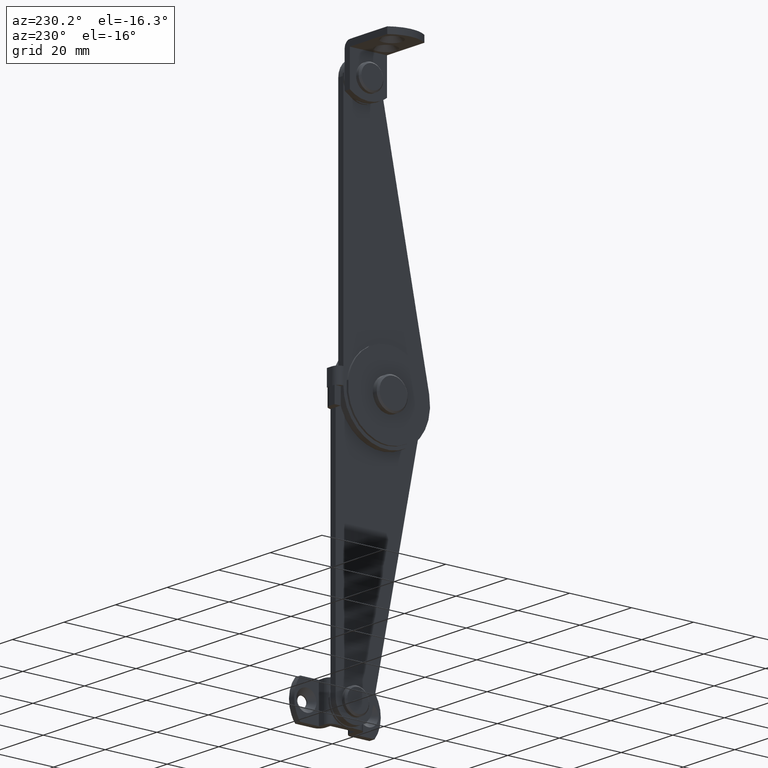
[diagram: clean part render]
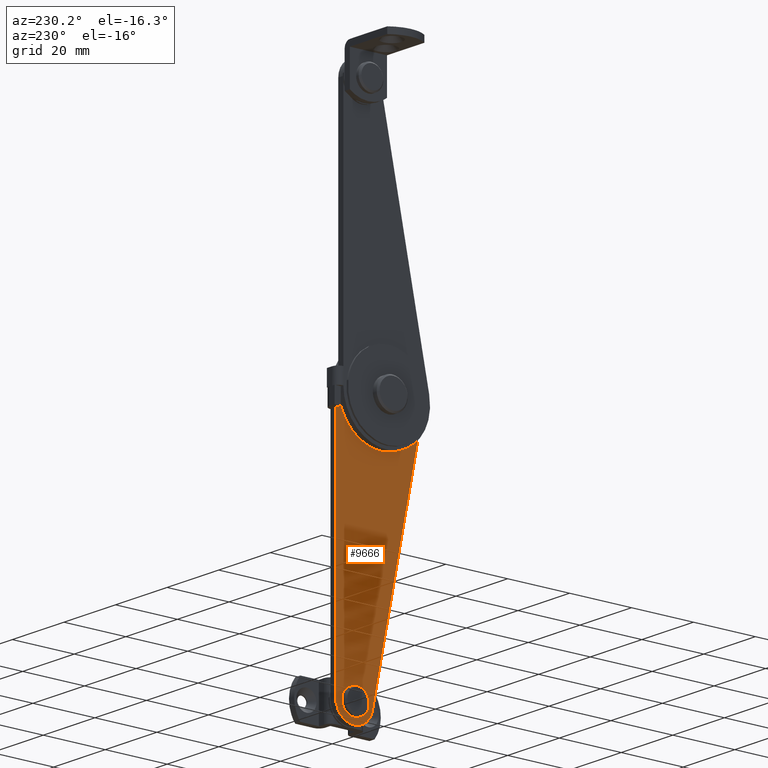
[diagram: same view with one face highlighted and labeled with its STEP entity id]
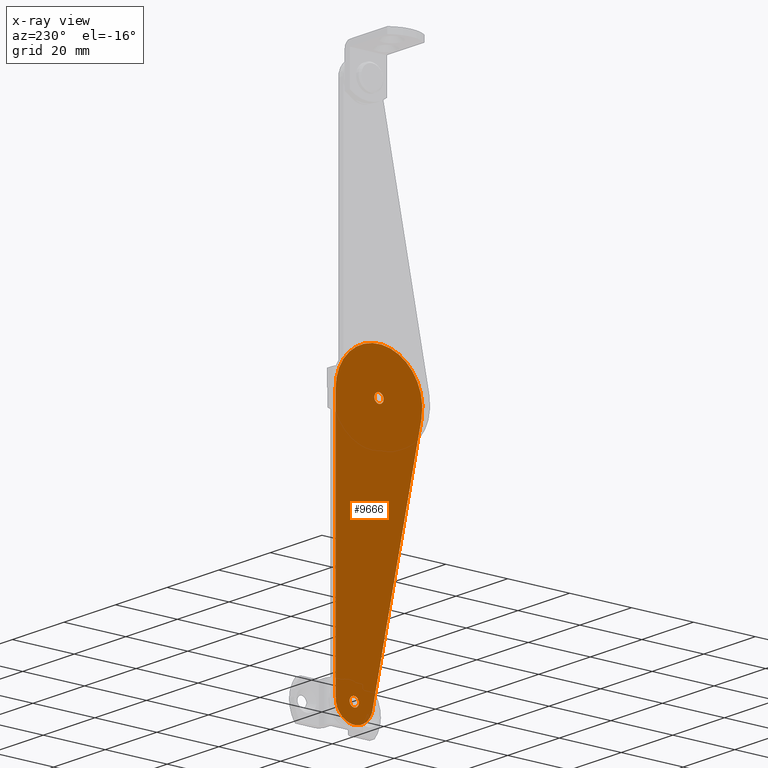
[diagram: x-ray of the same camera — body ghosted, the highlighted face saturated]
A machine part, auxiliary view. The second image highlights one B-rep face of the part: STEP entity #9666.
The next image is the same camera in x-ray: the body ghosted, the highlighted face saturated — about 0% of this face is hidden behind the body in this view.
In plain terms, the highlighted face is a freeform B-spline surface patch.
Its self-contained STEP definition (entity closure, byte-faithful):
#9092=CARTESIAN_POINT('',(-8.500000000000000,-1.495376000598306,-80.117688643609370));
#9093=VERTEX_POINT('',#9092);
#9099=CARTESIAN_POINT('',(-8.500000000000000,1.183291E-029,-78.500000000000000));
#9100=VERTEX_POINT('',#9099);
#9101=CARTESIAN_POINT('',(-8.500000000000000,-1.495376000598306,-80.117688643609370));
#9102=CARTESIAN_POINT('',(-8.500000000000000,-1.500000000000000,-80.058935160529217));
#9103=CARTESIAN_POINT('',(-8.500000000000000,-1.500000000000000,-80.0));
#9104=CARTESIAN_POINT('',(-8.500000000000002,-1.500000000000000,-78.500000000000000));
#9105=CARTESIAN_POINT('',(-8.500000000000000,1.183291E-029,-78.500000000000000));
#9113=(BOUNDED_CURVE()B_SPLINE_CURVE(2,(#9101,#9102,#9103,#9104,#9105),.UNSPECIFIED.,.F.,.U.)B_SPLINE_CURVE_WITH_KNOTS((3,2,3),(0.736331300628729,0.750000000000000,1.0),.UNSPECIFIED.)CURVE()GEOMETRIC_REPRESENTATION_ITEM()RATIONAL_B_SPLINE_CURVE((0.969723356163388,0.983986122576620,1.0,0.707106781186548,1.0))REPRESENTATION_ITEM(''));
#9114=EDGE_CURVE('',#9093,#9100,#9113,.T.);
#9116=CARTESIAN_POINT('',(-8.500000000000000,1.495376000598306,-79.882311356390616));
#9117=VERTEX_POINT('',#9116);
#9118=CARTESIAN_POINT('',(-8.500000000000000,1.183291E-029,-78.500000000000000));
#9119=CARTESIAN_POINT('',(-8.500000000000002,1.386585737454552,-78.500000000000014));
#9120=CARTESIAN_POINT('',(-8.500000000000000,1.495376000598306,-79.882311356390616));
#9128=(BOUNDED_CURVE()B_SPLINE_CURVE(2,(#9118,#9119,#9120),.UNSPECIFIED.,.F.,.U.)B_SPLINE_CURVE_WITH_KNOTS((3,3),(0.0,0.236331300628730),.UNSPECIFIED.)CURVE()GEOMETRIC_REPRESENTATION_ITEM()RATIONAL_B_SPLINE_CURVE((1.0,0.723120658609927,0.969723356163390))REPRESENTATION_ITEM(''));
#9129=EDGE_CURVE('',#9100,#9117,#9128,.T.);
#9175=CARTESIAN_POINT('',(-8.500000000000000,1.183291E-029,-81.500000000000000));
#9176=VERTEX_POINT('',#9175);
#9177=CARTESIAN_POINT('',(-8.500000000000000,1.495376000598305,-79.882311356390616));
#9178=CARTESIAN_POINT('',(-8.499999999999998,1.500000000000000,-79.941064839470798));
#9179=CARTESIAN_POINT('',(-8.500000000000000,1.500000000000000,-80.0));
#9180=CARTESIAN_POINT('',(-8.500000000000002,1.500000000000000,-81.500000000000000));
#9181=CARTESIAN_POINT('',(-8.500000000000000,1.183291E-029,-81.500000000000000));
#9189=(BOUNDED_CURVE()B_SPLINE_CURVE(2,(#9177,#9178,#9179,#9180,#9181),.UNSPECIFIED.,.F.,.U.)B_SPLINE_CURVE_WITH_KNOTS((3,2,3),(0.236331300628730,0.250000000000000,0.500000000000000),.UNSPECIFIED.)CURVE()GEOMETRIC_REPRESENTATION_ITEM()RATIONAL_B_SPLINE_CURVE((0.969723356163390,0.983986122576621,1.0,0.707106781186548,1.0))REPRESENTATION_ITEM(''));
#9190=EDGE_CURVE('',#9117,#9176,#9189,.T.);
#9192=CARTESIAN_POINT('',(-8.500000000000000,1.183291E-029,-81.500000000000000));
#9193=CARTESIAN_POINT('',(-8.500000000000000,-1.386585737454552,-81.500000000000000));
#9194=CARTESIAN_POINT('',(-8.500000000000000,-1.495376000598306,-80.117688643609370));
#9202=(BOUNDED_CURVE()B_SPLINE_CURVE(2,(#9192,#9193,#9194),.UNSPECIFIED.,.F.,.U.)B_SPLINE_CURVE_WITH_KNOTS((3,3),(0.500000000000000,0.736331300628729),.UNSPECIFIED.)CURVE()GEOMETRIC_REPRESENTATION_ITEM()RATIONAL_B_SPLINE_CURVE((1.0,0.723120658609927,0.969723356163389))REPRESENTATION_ITEM(''));
#9203=EDGE_CURVE('',#9176,#9093,#9202,.T.);
#9274=CARTESIAN_POINT('',(-8.500000000000000,-9.495376000598306,-0.117688643609387));
#9275=VERTEX_POINT('',#9274);
#9281=CARTESIAN_POINT('',(-8.500000000000000,-8.0,1.500000000000000));
#9282=VERTEX_POINT('',#9281);
#9283=CARTESIAN_POINT('',(-8.500000000000000,-9.495376000598307,-0.117688643609387));
#9284=CARTESIAN_POINT('',(-8.500000000000000,-9.500000000000000,-0.058935160529206));
#9285=CARTESIAN_POINT('',(-8.500000000000000,-9.500000000000000,4.898425E-016));
#9286=CARTESIAN_POINT('',(-8.500000000000002,-9.500000000000000,1.500000000000001));
#9287=CARTESIAN_POINT('',(-8.500000000000000,-8.0,1.500000000000000));
#9295=(BOUNDED_CURVE()B_SPLINE_CURVE(2,(#9283,#9284,#9285,#9286,#9287),.UNSPECIFIED.,.F.,.U.)B_SPLINE_CURVE_WITH_KNOTS((3,2,3),(0.736331300628727,0.750000000000000,1.0),.UNSPECIFIED.)CURVE()GEOMETRIC_REPRESENTATION_ITEM()RATIONAL_B_SPLINE_CURVE((0.969723356163385,0.983986122576618,1.0,0.707106781186548,1.0))REPRESENTATION_ITEM(''));
#9296=EDGE_CURVE('',#9275,#9282,#9295,.T.);
#9298=CARTESIAN_POINT('',(-8.500000000000000,-6.504623999401696,0.117688643609388));
#9299=VERTEX_POINT('',#9298);
#9300=CARTESIAN_POINT('',(-8.500000000000000,-8.0,1.500000000000000));
#9301=CARTESIAN_POINT('',(-8.500000000000000,-6.613414262545469,1.500000000000001));
#9302=CARTESIAN_POINT('',(-8.500000000000000,-6.504623999401696,0.117688643609388));
#9310=(BOUNDED_CURVE()B_SPLINE_CURVE(2,(#9300,#9301,#9302),.UNSPECIFIED.,.F.,.U.)B_SPLINE_CURVE_WITH_KNOTS((3,3),(0.0,0.236331300628727),.UNSPECIFIED.)CURVE()GEOMETRIC_REPRESENTATION_ITEM()RATIONAL_B_SPLINE_CURVE((1.0,0.723120658609930,0.969723356163385))REPRESENTATION_ITEM(''));
#9311=EDGE_CURVE('',#9282,#9299,#9310,.T.);
#9357=CARTESIAN_POINT('',(-8.500000000000000,-8.0,-1.500000000000000));
#9358=VERTEX_POINT('',#9357);
#9359=CARTESIAN_POINT('',(-8.500000000000000,-6.504623999401696,0.117688643609388));
#9360=CARTESIAN_POINT('',(-8.500000000000000,-6.500000000000001,0.058935160529207));
#9361=CARTESIAN_POINT('',(-8.500000000000000,-6.500000000000001,4.898425E-016));
#9362=CARTESIAN_POINT('',(-8.500000000000002,-6.500000000000003,-1.500000000000000));
#9363=CARTESIAN_POINT('',(-8.500000000000000,-8.0,-1.500000000000000));
#9371=(BOUNDED_CURVE()B_SPLINE_CURVE(2,(#9359,#9360,#9361,#9362,#9363),.UNSPECIFIED.,.F.,.U.)B_SPLINE_CURVE_WITH_KNOTS((3,2,3),(0.236331300628727,0.250000000000000,0.500000000000000),.UNSPECIFIED.)CURVE()GEOMETRIC_REPRESENTATION_ITEM()RATIONAL_B_SPLINE_CURVE((0.969723356163385,0.983986122576618,1.0,0.707106781186548,1.0))REPRESENTATION_ITEM(''));
#9372=EDGE_CURVE('',#9299,#9358,#9371,.T.);
#9374=CARTESIAN_POINT('',(-8.500000000000000,-8.0,-1.500000000000000));
#9375=CARTESIAN_POINT('',(-8.500000000000000,-9.386585737454535,-1.499999999999999));
#9376=CARTESIAN_POINT('',(-8.500000000000000,-9.495376000598307,-0.117688643609387));
#9384=(BOUNDED_CURVE()B_SPLINE_CURVE(2,(#9374,#9375,#9376),.UNSPECIFIED.,.F.,.U.)B_SPLINE_CURVE_WITH_KNOTS((3,3),(0.500000000000000,0.736331300628727),.UNSPECIFIED.)CURVE()GEOMETRIC_REPRESENTATION_ITEM()RATIONAL_B_SPLINE_CURVE((1.0,0.723120658609930,0.969723356163385))REPRESENTATION_ITEM(''));
#9385=EDGE_CURVE('',#9358,#9275,#9384,.T.);
#9506=CARTESIAN_POINT('',(-8.500000000000000,6.000000000000110,-5.0));
#9507=VERTEX_POINT('',#9506);
#9508=CARTESIAN_POINT('',(-8.500000000000000,6.0,-5.288801E-015));
#9509=VERTEX_POINT('',#9508);
#9510=CARTESIAN_POINT('',(-8.500000000000000,6.000000000000110,-5.0));
#9511=CARTESIAN_POINT('',(-8.500000000000000,6.0,-5.288801E-015));
#9512=QUASI_UNIFORM_CURVE('',1,(#9510,#9511),.UNSPECIFIED.,.F.,.U.);
#9513=EDGE_CURVE('',#9507,#9509,#9512,.T.);
#9598=CARTESIAN_POINT('',(-8.500000000000000,7.398435708138784,-90.994918478531204));
#9599=CARTESIAN_POINT('',(-8.500000000000000,-23.395148418747048,-90.994918478531204));
#9600=CARTESIAN_POINT('',(-8.500000000000000,7.398435708138784,18.994131865499870));
#9601=CARTESIAN_POINT('',(-8.500000000000000,-23.395148418747048,18.994131865499870));
#9602=B_SPLINE_SURFACE_WITH_KNOTS('',1,1,((#9598,#9600),(#9599,#9601)),.UNSPECIFIED.,.F.,.F.,.U.,(2,2),(2,2),(0.0,30.793584126885829),(0.0,109.989050344031100),.UNSPECIFIED.);
#9603=CARTESIAN_POINT('',(-8.500000000000000,6.000000000000110,-79.999983999999898));
#9604=VERTEX_POINT('',#9603);
#9605=CARTESIAN_POINT('',(-8.500000000000000,6.000000000000110,-5.0));
#9606=CARTESIAN_POINT('',(-8.500000000000000,6.000000000000110,-79.999983999999898));
#9607=QUASI_UNIFORM_CURVE('',1,(#9605,#9606),.UNSPECIFIED.,.F.,.U.);
#9608=EDGE_CURVE('',#9507,#9604,#9607,.T.);
#9609=ORIENTED_EDGE('',*,*,#9608,.T.);
#9610=CARTESIAN_POINT('',(-8.500000000000000,-5.878711889223000,-81.200295011158303));
#9611=VERTEX_POINT('',#9610);
#9612=CARTESIAN_POINT('',(-8.500000000000000,6.0,-79.999983999999898));
#9613=CARTESIAN_POINT('',(-8.500000000000000,6.000000000000001,-85.424254417550614));
#9614=CARTESIAN_POINT('',(-8.500000000000000,0.603211681195740,-85.969584963855780));
#9615=CARTESIAN_POINT('',(-8.500000000000000,-4.793576637608520,-86.514915510160961));
#9616=CARTESIAN_POINT('',(-8.500000000000000,-5.878711889223003,-81.200295011158303));
#9624=(BOUNDED_CURVE()B_SPLINE_CURVE(2,(#9612,#9613,#9614,#9615,#9616),.UNSPECIFIED.,.F.,.U.)B_SPLINE_CURVE_WITH_KNOTS((3,2,3),(0.0,0.500000000000000,1.0),.UNSPECIFIED.)CURVE()GEOMETRIC_REPRESENTATION_ITEM()RATIONAL_B_SPLINE_CURVE((1.0,0.741800269681567,1.0,0.741800269681567,1.0))REPRESENTATION_ITEM(''));
#9625=EDGE_CURVE('',#9604,#9611,#9624,.T.);
#9626=ORIENTED_EDGE('',*,*,#9625,.T.);
#9627=CARTESIAN_POINT('',(-8.500000000000000,-21.717654369736650,-2.797491482104180));
#9628=VERTEX_POINT('',#9627);
#9629=CARTESIAN_POINT('',(-8.500000000000000,-5.878711889223000,-81.200295011158303));
#9630=CARTESIAN_POINT('',(-8.500000000000000,-21.717654369736650,-2.797491482104180));
#9631=QUASI_UNIFORM_CURVE('',1,(#9629,#9630),.UNSPECIFIED.,.F.,.U.);
#9632=EDGE_CURVE('',#9611,#9628,#9631,.T.);
#9633=ORIENTED_EDGE('',*,*,#9632,.T.);
#9634=CARTESIAN_POINT('',(-8.500000000000000,-21.717654369736628,-2.797491482104177));
#9635=CARTESIAN_POINT('',(-8.500000000000000,-23.460367806835894,5.748000344609852));
#9636=CARTESIAN_POINT('',(-8.500000000000000,-16.558346955534638,11.079471891236111));
#9637=CARTESIAN_POINT('',(-8.500000000000000,-9.656326104233390,16.410943437862361));
#9638=CARTESIAN_POINT('',(-8.500000000000000,-1.828163052116696,12.566162050870680));
#9639=CARTESIAN_POINT('',(-8.500000000000000,5.999999999999999,8.721380663879009));
#9640=CARTESIAN_POINT('',(-8.500000000000000,6.0,4.898425E-016));
#9648=(BOUNDED_CURVE()B_SPLINE_CURVE(2,(#9634,#9635,#9636,#9637,#9638,#9639,#9640),.UNSPECIFIED.,.F.,.U.)B_SPLINE_CURVE_WITH_KNOTS((3,2,2,3),(0.0,0.333333333333333,0.666666666666667,1.0),.UNSPECIFIED.)CURVE()GEOMETRIC_REPRESENTATION_ITEM()RATIONAL_B_SPLINE_CURVE((1.0,0.848777207598489,1.0,0.848777207598489,1.0,0.848777207598489,1.0))REPRESENTATION_ITEM(''));
#9649=EDGE_CURVE('',#9628,#9509,#9648,.T.);
#9650=ORIENTED_EDGE('',*,*,#9649,.T.);
#9651=ORIENTED_EDGE('',*,*,#9513,.F.);
#9652=EDGE_LOOP('',(#9609,#9626,#9633,#9650,#9651));
#9653=FACE_OUTER_BOUND('',#9652,.T.);
#9654=ORIENTED_EDGE('',*,*,#9385,.F.);
#9655=ORIENTED_EDGE('',*,*,#9372,.F.);
#9656=ORIENTED_EDGE('',*,*,#9311,.F.);
#9657=ORIENTED_EDGE('',*,*,#9296,.F.);
#9658=EDGE_LOOP('',(#9654,#9655,#9656,#9657));
#9659=FACE_BOUND('',#9658,.T.);
#9660=ORIENTED_EDGE('',*,*,#9203,.F.);
#9661=ORIENTED_EDGE('',*,*,#9190,.F.);
#9662=ORIENTED_EDGE('',*,*,#9129,.F.);
#9663=ORIENTED_EDGE('',*,*,#9114,.F.);
#9664=EDGE_LOOP('',(#9660,#9661,#9662,#9663));
#9665=FACE_BOUND('',#9664,.T.);
#9666=ADVANCED_FACE('',(#9653,#9659,#9665),#9602,.T.);